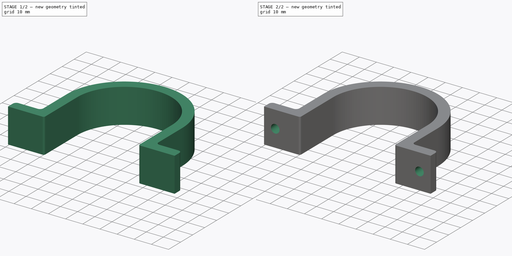
[diagram: build sequence overview — one tinted view per stage of 2, left to right]
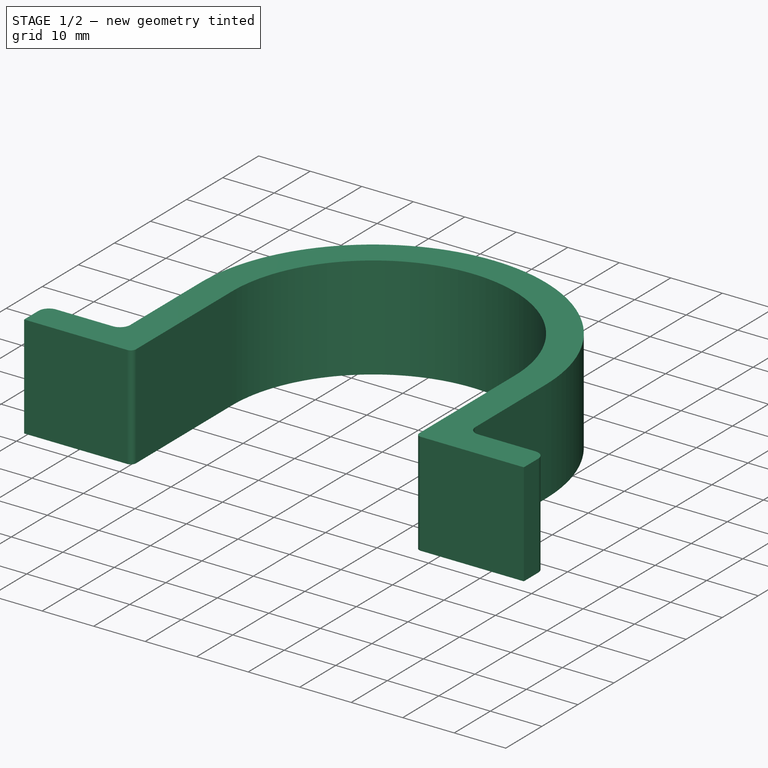
[diagram: stage 1 of 2 — iso view after this stage's code; geometry added in this stage tinted green]
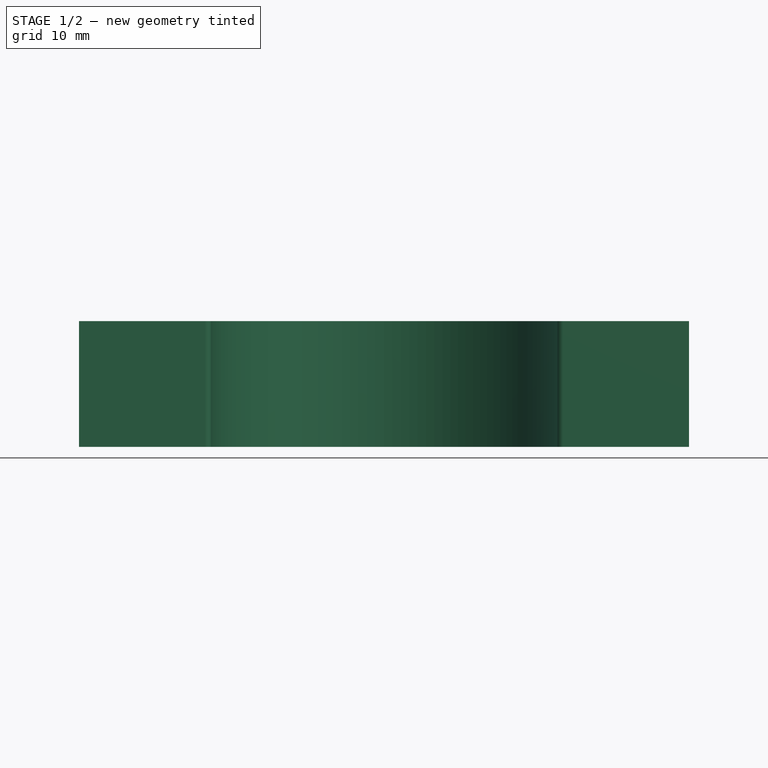
[diagram: stage 1 of 2 — front view after this stage's code; geometry added in this stage tinted green]
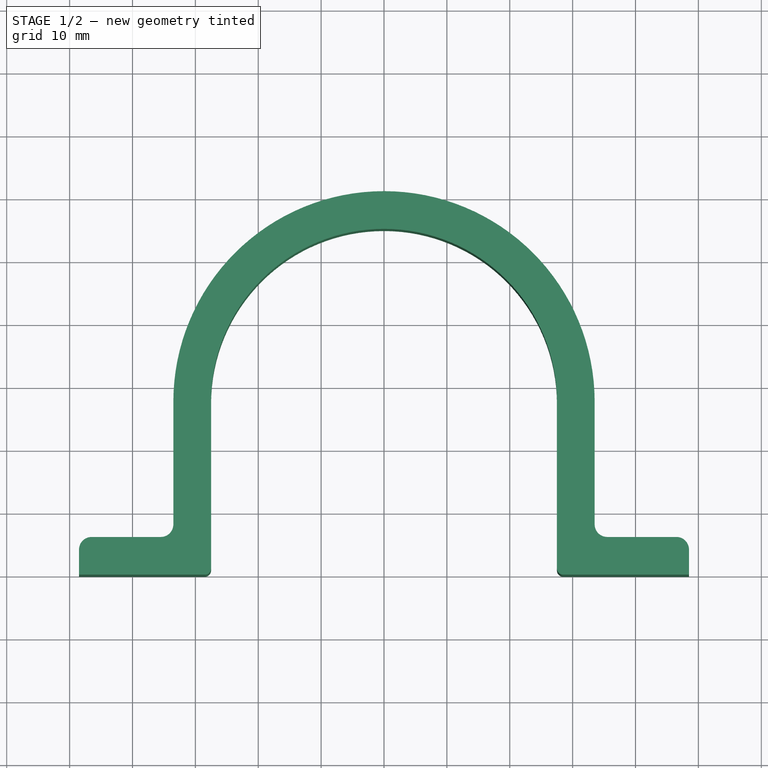
[diagram: stage 1 of 2 — top view after this stage's code; geometry added in this stage tinted green]
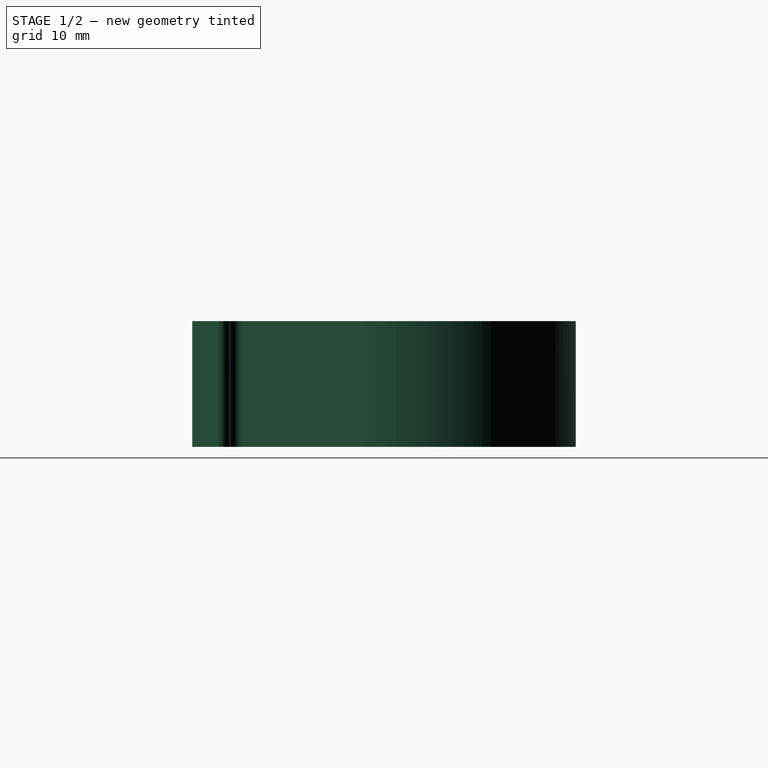
[diagram: stage 1 of 2 — right view after this stage's code; geometry added in this stage tinted green]
FCSTD DOCUMENT  (FreeCAD 0.22R37100 (Git))
Label: clamp
License: All rights reserved
LicenseURL: http://en.wikipedia.org/wiki/All_rights_reserved
objects: PartDesign::Mirrored×3, Sketcher::SketchObject×2, PartDesign::Pad×1, PartDesign::Pocket×1, PartDesign::MultiTransform×1, PartDesign::Body×1
note: 11 computed .brp shape members not serialized (recipe doc carries the construction recipe); baked Part::Feature solids carry a one-line shape summary decoded from their .brp

FEATURE [Sketcher::SketchObject] Sketch
  AttachmentSupport = -> [XY_Plane]
  FullyConstrained = true
  MapMode = 5
  sketch-geometry (14):
    g0: ArcOfCircle CenterX=0 CenterY=27.5 CenterZ=0 NormalX=0 NormalY=0 NormalZ=1 AngleXU=0 Radius=27.5 StartAngle=0 EndAngle=1.5708
    g1: LineSegment StartX=28.5 StartY=0 StartZ=0 EndX=48.5 EndY=0 EndZ=0
    g2: LineSegment StartX=48.5 StartY=0 StartZ=0 EndX=48.5 EndY=4 EndZ=0
    g3: LineSegment StartX=46.5 StartY=6 StartZ=0 EndX=35.5 EndY=6 EndZ=0
    g4: ArcOfCircle CenterX=0 CenterY=27.5 CenterZ=0 NormalX=0 NormalY=0 NormalZ=1 AngleXU=0 Radius=33.5 StartAngle=0 EndAngle=1.5708
    g5: LineSegment StartX=1.7e-15 StartY=55 StartZ=0 EndX=2.1e-15 EndY=61 EndZ=0
    g6: LineSegment StartX=27.5 StartY=27.5 StartZ=0 EndX=27.5 EndY=1 EndZ=0
    g7: LineSegment StartX=33.5 StartY=27.5 StartZ=0 EndX=33.5 EndY=8 EndZ=0
    g8: ArcOfCircle CenterX=35.5 CenterY=8 CenterZ=0 NormalX=0 NormalY=0 NormalZ=1 AngleXU=0 Radius=2 StartAngle=3.14159 EndAngle=4.71239
    g9: GeomPoint X=33.5 Y=6 Z=0
    g10: ArcOfCircle CenterX=46.5 CenterY=4 CenterZ=0 NormalX=0 NormalY=0 NormalZ=1 AngleXU=0 Radius=2 StartAngle=0 EndAngle=1.5708
    g11: GeomPoint X=48.5 Y=6 Z=0
    g12: ArcOfCircle CenterX=28.5 CenterY=1 CenterZ=0 NormalX=0 NormalY=0 NormalZ=1 AngleXU=0 Radius=1 StartAngle=3.14159 EndAngle=4.71239
    g13: GeomPoint X=27.5 Y=0 Z=0
  constraints (35):
    c: PointOnObject(g0,g-2)
    c: PointOnObject(g13,g-1)
    c: Coincident(g1,g2)
    c: Horizontal(g3)
    c: Horizontal(g1)
    c: PointOnObject(g4,g-2)
    c: Coincident(g5,g0)
    c: Coincident(g5,g4)
    c: DistanceY(g5,g5) = 6
    c: Diameter(g0) = 55
    c: Coincident(g4,g0)
    c: PointOnObject(g0,g-2)
    c: Vertical(g6)
    c: Vertical(g7)
    c: Tangent(g0,g-1)
    c: Tangent(g6,g0) = 1.5708
    c: Vertical(g2)
    c: Tangent(g7,g4) = 1.5708
    c: DistanceX(g13,g1) = 21
    c: PointOnObject(g9,g3)
    c: PointOnObject(g9,g7)
    c: Tangent(g3,g8) = 1.5708
    c: Tangent(g7,g8) = -1.5708
    c: PointOnObject(g11,g2)
    c: PointOnObject(g11,g3)
    c: Tangent(g2,g10) = -1.5708
    c: Tangent(g3,g10) = -1.5708
    c: PointOnObject(g13,g1)
    c: PointOnObject(g13,g6)
    c: Tangent(g1,g12) = -1.5708
    c: Tangent(g6,g12) = -1.5708
    c: Radius(g12) = 1
    c: Radius(g8) = 2
    c: Equal(g10,g8)
    c: DistanceY(g1,g11) = 6
FEATURE [PartDesign::Pad] Pad
  Direction = (0,0,1)
  Length = 20
  Length2 = 10
  Midplane = true
  Profile = -> Sketch
  ReferenceAxis = -> Sketch [N_Axis]
  Suppressed = false
  Type = 0
FEATURE [PartDesign::Mirrored] Mirrored
  BaseFeature = -> Pad
  MirrorPlane = -> Sketch [V_Axis]
  Originals = -> [Pad]
  Suppressed = false
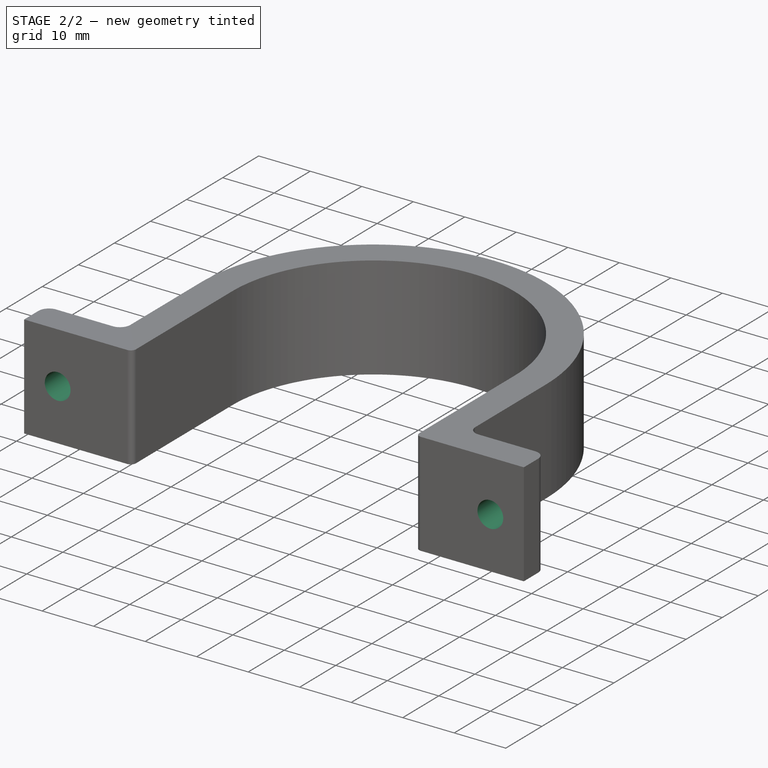
[diagram: stage 2 of 2 — iso view after this stage's code; geometry added in this stage tinted green]
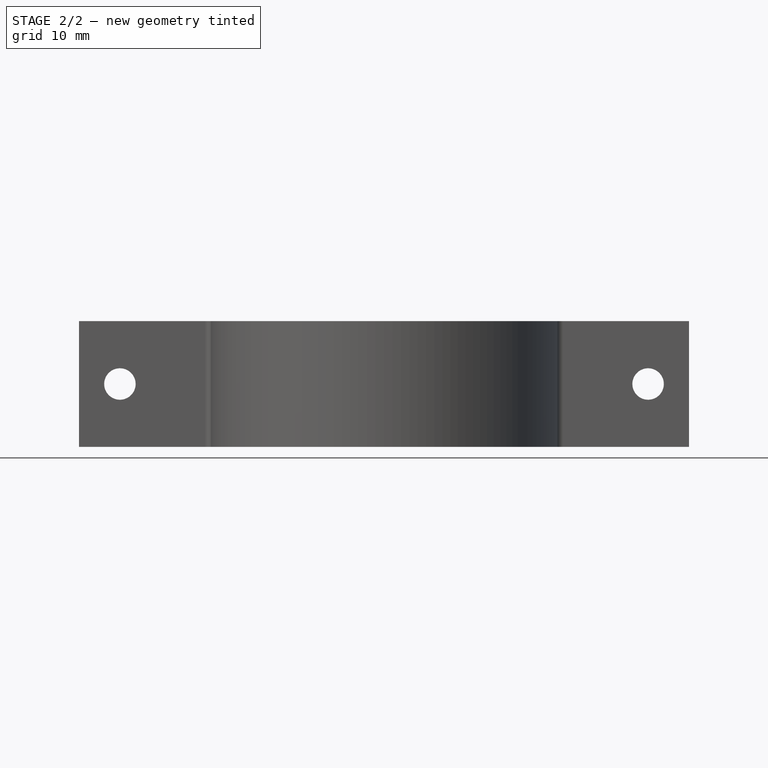
[diagram: stage 2 of 2 — front view after this stage's code; geometry added in this stage tinted green]
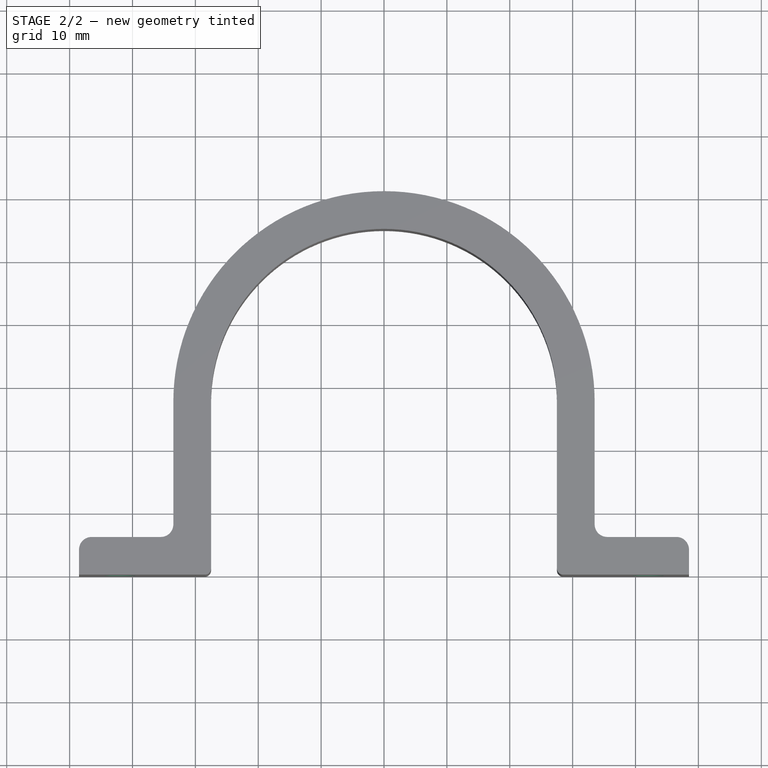
[diagram: stage 2 of 2 — top view after this stage's code; geometry added in this stage tinted green]
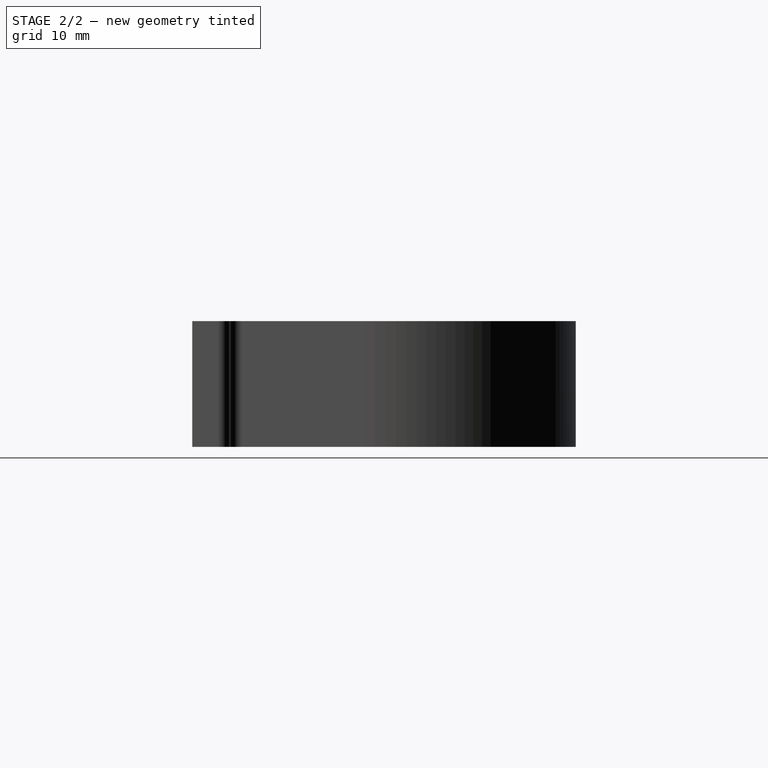
[diagram: stage 2 of 2 — right view after this stage's code; geometry added in this stage tinted green]
FEATURE [Sketcher::SketchObject] Sketch001
  AttachmentSupport = -> [XZ_Plane]
  FullyConstrained = true
  MapMode = 5
  Placement = pos=(0,0,0) rot=(1,0,0;1.5708rad)
  sketch-geometry (1):
    g0: Circle CenterX=42 CenterY=0 CenterZ=0 NormalX=0 NormalY=0 NormalZ=1 AngleXU=0 Radius=2.5
  constraints (3):
    c: Diameter(g0) = 5
    c: DistanceX(g0) = 42
    c: DistanceY(g0) = 0
FEATURE [PartDesign::Pocket] Pocket
  BaseFeature = -> Mirrored
  Direction = (0,1,-2e-16)
  Length = 5
  Length2 = 5
  Profile = -> Sketch001
  ReferenceAxis = -> Sketch001 [N_Axis]
  Suppressed = false
  Type = 1
FEATURE [PartDesign::Mirrored] Mirrored001
  MirrorPlane = -> Sketch001 [H_Axis]
  Suppressed = false
FEATURE [PartDesign::Mirrored] Mirrored002
  MirrorPlane = -> Sketch001 [V_Axis]
  Suppressed = false
FEATURE [PartDesign::MultiTransform] MultiTransform
  BaseFeature = -> Pocket
  Originals = -> [Pocket]
  Refine = true
  Suppressed = false
  Transformations = -> [Mirrored001,Mirrored002]
FEATURE [PartDesign::Body] Body
  Group = -> [Sketch,Pad,Mirrored,Sketch001,Pocket,MultiTransform,Mirrored001,Mirrored002]
  Origin = -> Origin
  Tip = -> MultiTransform
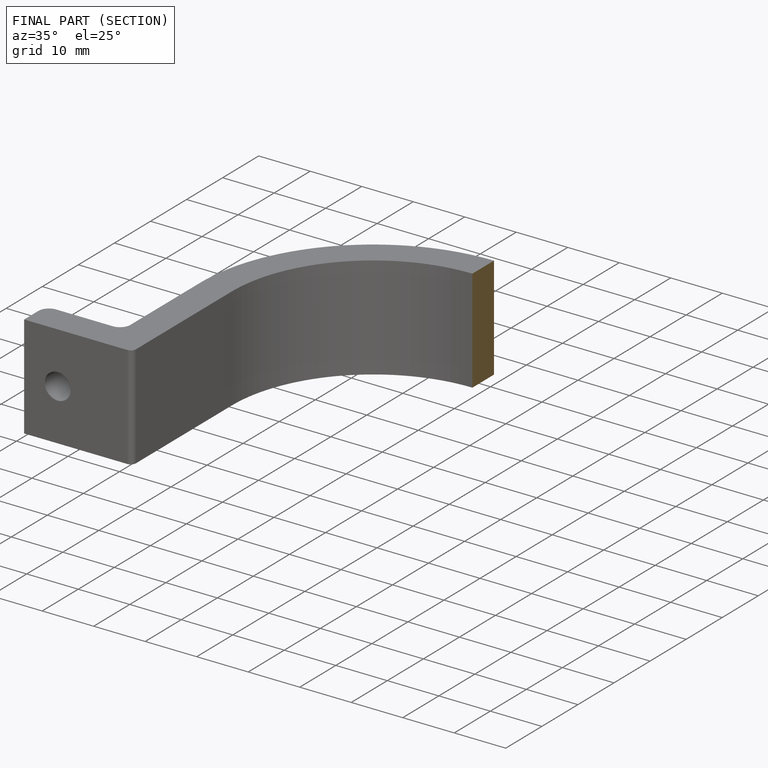
[diagram: finished part — half-section view (interior)]
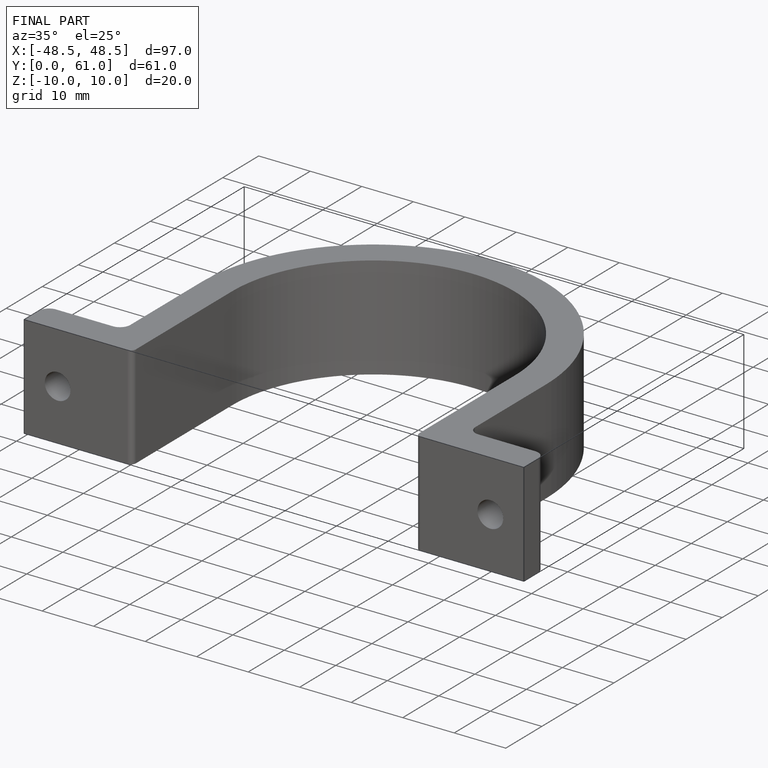
[diagram: finished part — iso view with bounding-box wireframe]
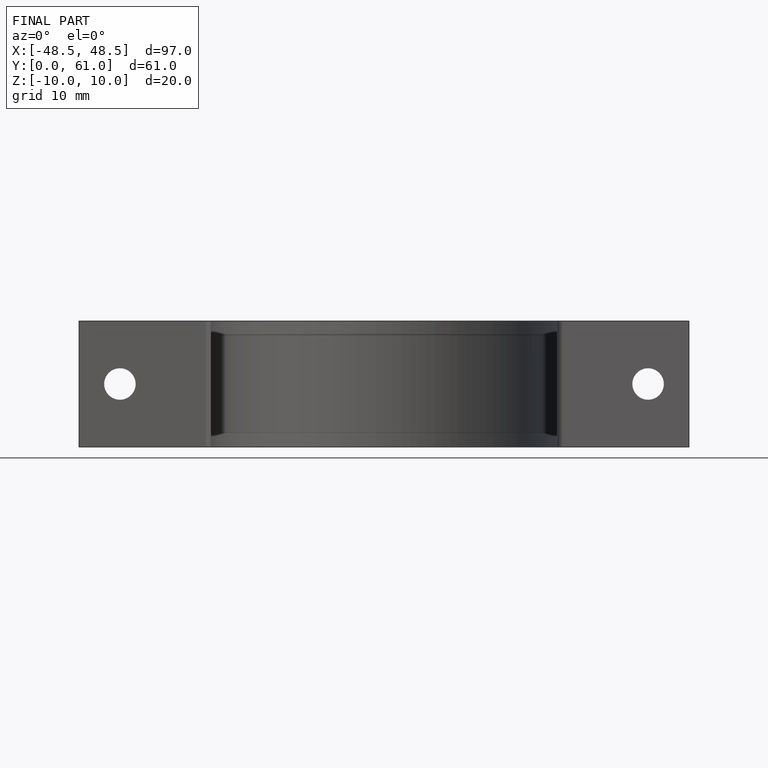
[diagram: finished part — front view with bounding-box wireframe]
